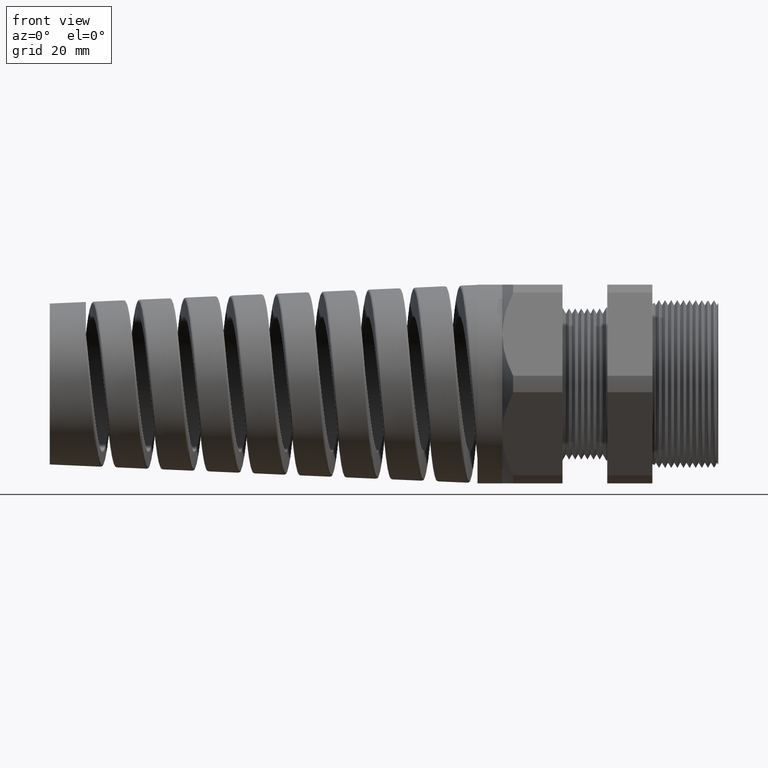
[diagram: clean part render]
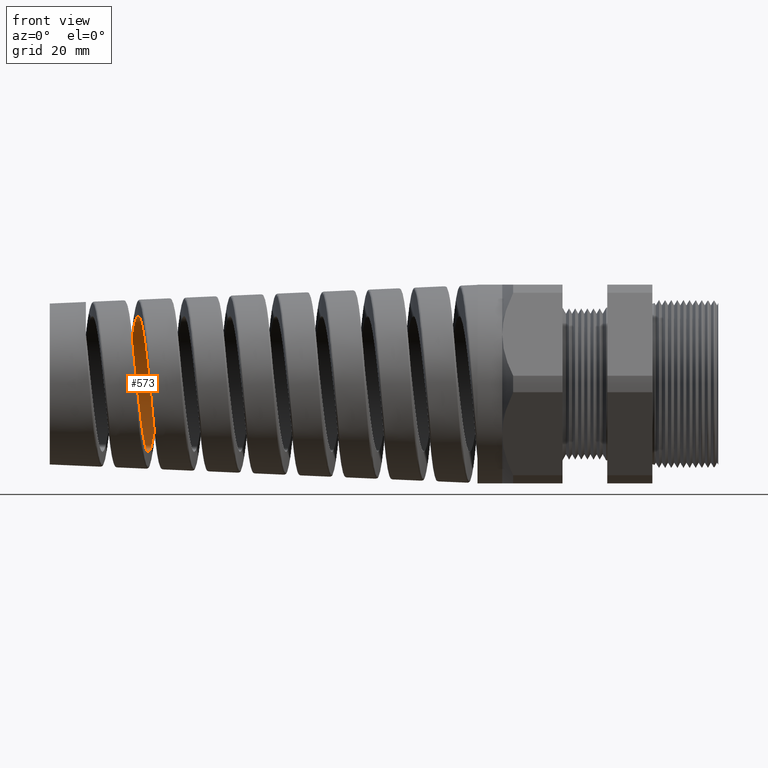
[diagram: same view with one face highlighted and labeled with its STEP entity id]
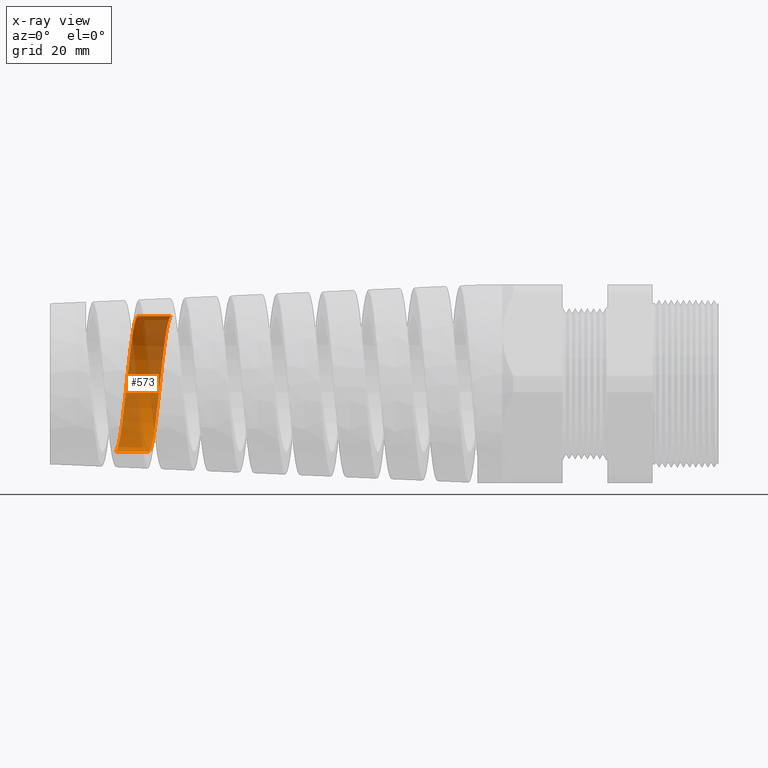
[diagram: x-ray of the same camera — body ghosted, the highlighted face saturated]
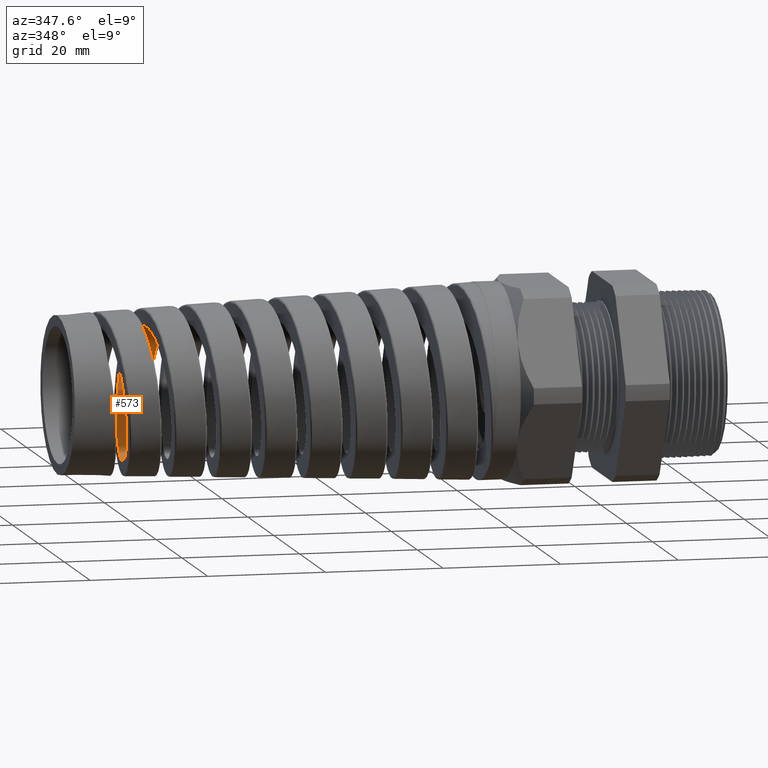
[diagram: same view with one face highlighted and labeled with its STEP entity id]
A machine part, front view. The second image highlights one B-rep face of the part: STEP entity #573.
The next image is the same camera in x-ray: the body ghosted, the highlighted face saturated — about 61% of this face is hidden behind the body in this view.
A second angle (auxiliary view) of the same face is appended — the face is thin or edge-on in the first view.
In plain terms, the highlighted cylindrical surface (partial cylindrical patch) has radius 11.2776 mm, axis along (1, 0, 0).
Its self-contained STEP definition (entity closure, byte-faithful):
#442 = VERTEX_POINT ( 'NONE', #2413 ) ;
#444 = EDGE_CURVE ( 'NONE', #442, #445, #2536, .T. ) ;
#445 = VERTEX_POINT ( 'NONE', #2532 ) ;
#459 = VERTEX_POINT ( 'NONE', #2703 ) ;
#466 = VERTEX_POINT ( 'NONE', #2696 ) ;
#468 = EDGE_CURVE ( 'NONE', #459, #466, #2718, .T. ) ;
#573 = ADVANCED_FACE ( 'NONE', ( #3527 ), #3555, .F. ) ;
#574 = EDGE_LOOP ( 'NONE', ( #575, #576, #578, #579 ) ) ;
#575 = ORIENTED_EDGE ( 'NONE', *, *, #444, .F. ) ;
#576 = ORIENTED_EDGE ( 'NONE', *, *, #577, .T. ) ;
#577 = EDGE_CURVE ( 'NONE', #442, #459, #3550, .T. ) ;
#578 = ORIENTED_EDGE ( 'NONE', *, *, #468, .T. ) ;
#579 = ORIENTED_EDGE ( 'NONE', *, *, #580, .T. ) ;
#580 = EDGE_CURVE ( 'NONE', #466, #445, #3675, .T. ) ;
#2413 = CARTESIAN_POINT ( 'NONE',  ( -3.672512712896237400, -4.752583149040248300E-013, 0.4439999999999999500 ) ) ;
#2532 = CARTESIAN_POINT ( 'NONE',  ( -3.454910713139912800, 4.588650926857941900E-016, 0.4439999999999999500 ) ) ;
#2533 = DIRECTION ( 'NONE',  ( 1.000000000000000000, 0.0000000000000000000, 0.0000000000000000000 ) ) ;
#2534 = VECTOR ( 'NONE', #2533, 39.37007874015748100 ) ;
#2535 = CARTESIAN_POINT ( 'NONE',  ( 0.09602717987635048200, 5.437431788214247900E-017, 0.4439999999999999500 ) ) ;
#2536 = LINE ( 'NONE', #2535, #2534 ) ;
#2696 = CARTESIAN_POINT ( 'NONE',  ( -3.604978604642645300, -4.670286228231112400E-013, -0.4439999999999999500 ) ) ;
#2703 = CARTESIAN_POINT ( 'NONE',  ( -3.822443610227072200, 1.969918514181339600E-015, -0.4439999999999999500 ) ) ;
#2715 = DIRECTION ( 'NONE',  ( 1.000000000000000000, 0.0000000000000000000, 0.0000000000000000000 ) ) ;
#2716 = VECTOR ( 'NONE', #2715, 39.37007874015748100 ) ;
#2717 = CARTESIAN_POINT ( 'NONE',  ( 0.09602717987635048200, 0.0000000000000000000, -0.4439999999999999500 ) ) ;
#2718 = LINE ( 'NONE', #2717, #2716 ) ;
#3527 = FACE_OUTER_BOUND ( 'NONE', #574, .T. ) ;
#3548 = CARTESIAN_POINT ( 'NONE',  ( -3.675638035217889200, 0.02907831844047455800, 0.4440000000000309300 ) ) ;
#3549 = CARTESIAN_POINT ( 'NONE',  ( -3.672512712896237400, -4.752583149040248300E-013, 0.4439999999999999500 ) ) ;
#3550 = B_SPLINE_CURVE_WITH_KNOTS ( 'NONE', 3,
 ( #3549, #3548, #3631, #3630, #3629, #3628, #3627, #3626, #3625, #3624, #3623, #3622, #3621, #3620, #3619, #3618, #3617, #3616, #3615, #3614, #3613, #3612, #3611, #3610, #3609, #3608, #3607, #3606, #3605, #3604, #3603, #3602, #3601, #3600, #3599, #3598, #3597, #3596, #3595, #3594, #3593, #3592, #3591, #3590, #3589, #3588, #3587, #3586 ),
 .UNSPECIFIED., .F., .F.,
 ( 4, 2, 2, 2, 2, 2, 2, 2, 2, 2, 2, 2, 2, 2, 2, 2, 2, 2, 2, 2, 2, 2, 2, 4 ),
 ( 0.5446853917177682000, 0.5469021130848819000, 0.5480104737684388100, 0.5491188344519957200, 0.5513355558191094200, 0.5524439165026662200, 0.5535522771862231300, 0.5546606378697800400, 0.5557689985533368300, 0.5579857199204506500, 0.5590940806040074500, 0.5602024412875643600, 0.5624191626546780600, 0.5635275233382349700, 0.5646358840217917700, 0.5668526053889055800, 0.5690693267560192900, 0.5701776874395760900, 0.5712860481231329900, 0.5735027694902467000, 0.5757194908573605200, 0.5779362122244742200, 0.5790445729080310200, 0.5801529335915879300 ),
 .UNSPECIFIED. ) ;
#3551 = DIRECTION ( 'NONE',  ( 0.0000000000000000000, 0.0000000000000000000, -1.000000000000000000 ) ) ;
#3552 = DIRECTION ( 'NONE',  ( 1.000000000000000000, 0.0000000000000000000, 0.0000000000000000000 ) ) ;
#3553 = CARTESIAN_POINT ( 'NONE',  ( 0.09602717987635048200, 0.0000000000000000000, 0.0000000000000000000 ) ) ;
#3554 = AXIS2_PLACEMENT_3D ( 'NONE', #3553, #3552, #3551 ) ;
#3555 = CYLINDRICAL_SURFACE ( 'NONE', #3554, 0.4439999999999999500 ) ;
#3586 = CARTESIAN_POINT ( 'NONE',  ( -3.822443610227072200, 1.969918514181339600E-015, -0.4439999999999999500 ) ) ;
#3587 = CARTESIAN_POINT ( 'NONE',  ( -3.820888889119868000, 0.01446393878662803300, -0.4439999999999998400 ) ) ;
#3588 = CARTESIAN_POINT ( 'NONE',  ( -3.819333151401077800, 0.02893897862240789700, -0.4432949273965424200 ) ) ;
#3589 = CARTESIAN_POINT ( 'NONE',  ( -3.816204422092647000, 0.05791004261739410300, -0.4404478222255908700 ) ) ;
#3590 = CARTESIAN_POINT ( 'NONE',  ( -3.814623408964656900, 0.07247862019980773300, -0.4382868450889252400 ) ) ;
#3591 = CARTESIAN_POINT ( 'NONE',  ( -3.809922828973564300, 0.1153683219686311900, -0.4297396725256221200 ) ) ;
#3592 = CARTESIAN_POINT ( 'NONE',  ( -3.806826953188867400, 0.1430541286033896700, -0.4213218363639396600 ) ) ;
#3593 = CARTESIAN_POINT ( 'NONE',  ( -3.800593771048761800, 0.1966293231186677900, -0.3991409309973761900 ) ) ;
#3594 = CARTESIAN_POINT ( 'NONE',  ( -3.797429861594527900, 0.2227145945499239800, -0.3851951235664180000 ) ) ;
#3595 = CARTESIAN_POINT ( 'NONE',  ( -3.791195756417219200, 0.2709289725304144200, -0.3529512228176849300 ) ) ;
#3596 = CARTESIAN_POINT ( 'NONE',  ( -3.788100503825459600, 0.2933016405478673400, -0.3346031872770070500 ) ) ;
#3597 = CARTESIAN_POINT ( 'NONE',  ( -3.783401617952992800, 0.3242138715039256100, -0.3036999371837876300 ) ) ;
#3598 = CARTESIAN_POINT ( 'NONE',  ( -3.781820095638146900, 0.3341043874777468400, -0.2927837440492249100 ) ) ;
#3599 = CARTESIAN_POINT ( 'NONE',  ( -3.778689660952627700, 0.3525712330092765100, -0.2702620731173369700 ) ) ;
#3600 = CARTESIAN_POINT ( 'NONE',  ( -3.777133548179794500, 0.3611988654616083400, -0.2586128705154687700 ) ) ;
#3601 = CARTESIAN_POINT ( 'NONE',  ( -3.772469551707655200, 0.3852991451738370700, -0.2225253189107356000 ) ) ;
#3602 = CARTESIAN_POINT ( 'NONE',  ( -3.769359930806240700, 0.3990302552496907700, -0.1969006133566777500 ) ) ;
#3603 = CARTESIAN_POINT ( 'NONE',  ( -3.763058420220919900, 0.4214501046917314400, -0.1427403425811982200 ) ) ;
#3604 = CARTESIAN_POINT ( 'NONE',  ( -3.759958006520835100, 0.4298257505554262100, -0.1149928021849837600 ) ) ;
#3605 = CARTESIAN_POINT ( 'NONE',  ( -3.755292427112976400, 0.4382934985464543900, -0.07241677451137953900 ) ) ;
#3606 = CARTESIAN_POINT ( 'NONE',  ( -3.753734798023343500, 0.4404285034215649800, -0.05806448178780131800 ) ) ;
#3607 = CARTESIAN_POINT ( 'NONE',  ( -3.750599303927516700, 0.4432897748186490100, -0.02903319156890713300 ) ) ;
#3608 = CARTESIAN_POINT ( 'NONE',  ( -3.749018747263103800, 0.4440071608698743500, -0.01432793028524344600 ) ) ;
#3609 = CARTESIAN_POINT ( 'NONE',  ( -3.744327054358403700, 0.4439855144317485000, 0.02931649594882569300 ) ) ;
#3610 = CARTESIAN_POINT ( 'NONE',  ( -3.741232205036390200, 0.4411380415607408800, 0.05810366632158917000 ) ) ;
#3611 = CARTESIAN_POINT ( 'NONE',  ( -3.736551822199566600, 0.4326466704918894800, 0.1008144853198011900 ) ) ;
#3612 = CARTESIAN_POINT ( 'NONE',  ( -3.734979015055124300, 0.4290904953493652800, 0.1150282878980222900 ) ) ;
#3613 = CARTESIAN_POINT ( 'NONE',  ( -3.731833254004541800, 0.4205847928339452300, 0.1430335354129979600 ) ) ;
#3614 = CARTESIAN_POINT ( 'NONE',  ( -3.730272177151865000, 0.4156736543291989500, 0.1567201912704632200 ) ) ;
#3615 = CARTESIAN_POINT ( 'NONE',  ( -3.725601392559798200, 0.3990261141837804200, 0.1968587849712509500 ) ) ;
#3616 = CARTESIAN_POINT ( 'NONE',  ( -3.722503870012772200, 0.3853934916988599500, 0.2223979497144986700 ) ) ;
#3617 = CARTESIAN_POINT ( 'NONE',  ( -3.717795096547723300, 0.3610536798147637700, 0.2588232759287329400 ) ) ;
#3618 = CARTESIAN_POINT ( 'NONE',  ( -3.716216581855919200, 0.3522878994771471200, 0.2706298294994236600 ) ) ;
#3619 = CARTESIAN_POINT ( 'NONE',  ( -3.713092194582171300, 0.3338335451199557200, 0.2930911682148582600 ) ) ;
#3620 = CARTESIAN_POINT ( 'NONE',  ( -3.711537591185771300, 0.3241013988478828000, 0.3038148093837464400 ) ) ;
#3621 = CARTESIAN_POINT ( 'NONE',  ( -3.708428608864963400, 0.3036433562263258200, 0.3242620350205203700 ) ) ;
#3622 = CARTESIAN_POINT ( 'NONE',  ( -3.706874288965475100, 0.2929174511900805000, 0.3339856197906754300 ) ) ;
#3623 = CARTESIAN_POINT ( 'NONE',  ( -3.703750956475797600, 0.2704597047287694600, 0.3524181827838647800 ) ) ;
#3624 = CARTESIAN_POINT ( 'NONE',  ( -3.702173989090225900, 0.2586639648238259800, 0.3611683238740895900 ) ) ;
#3625 = CARTESIAN_POINT ( 'NONE',  ( -3.697461012268538300, 0.2221967331781996600, 0.3855113892462050900 ) ) ;
#3626 = CARTESIAN_POINT ( 'NONE',  ( -3.694364053556744600, 0.1966427744412881100, 0.3991319651078166200 ) ) ;
#3627 = CARTESIAN_POINT ( 'NONE',  ( -3.689694923790786300, 0.1565078311499122100, 0.4157535031319029600 ) ) ;
#3628 = CARTESIAN_POINT ( 'NONE',  ( -3.688134801992536600, 0.1428266899124230600, 0.4206546270731497100 ) ) ;
#3629 = CARTESIAN_POINT ( 'NONE',  ( -3.684991323853882500, 0.1148424792132963600, 0.4291398182382215000 ) ) ;
#3630 = CARTESIAN_POINT ( 'NONE',  ( -3.683415355332933400, 0.1006030986950326700, 0.4326961244133870600 ) ) ;
#3631 = CARTESIAN_POINT ( 'NONE',  ( -3.678731820061940500, 0.05786594011338236400, 0.4411702745793567600 ) ) ;
#3632 = CARTESIAN_POINT ( 'NONE',  ( -3.462738520276302400, 0.07248378711504026300, 0.4382859277347296300 ) ) ;
#3633 = CARTESIAN_POINT ( 'NONE',  ( -3.467442969368619300, 0.1153678616970725800, 0.4297395395664330200 ) ) ;
#3634 = CARTESIAN_POINT ( 'NONE',  ( -3.470541947506351500, 0.1430529576543280700, 0.4213223714738729100 ) ) ;
#3635 = CARTESIAN_POINT ( 'NONE',  ( -3.476780682969529100, 0.1966318096971382000, 0.3991398511966043900 ) ) ;
#3636 = CARTESIAN_POINT ( 'NONE',  ( -3.479947388510651800, 0.2227170037664309400, 0.3851935672820368000 ) ) ;
#3637 = CARTESIAN_POINT ( 'NONE',  ( -3.486187006351554500, 0.2709277250608492200, 0.3529520021695730100 ) ) ;
#3638 = CARTESIAN_POINT ( 'NONE',  ( -3.489285658515818100, 0.2933011407008520600, 0.3346039365504899800 ) ) ;
#3639 = CARTESIAN_POINT ( 'NONE',  ( -3.493989055816144200, 0.3242169740230250200, 0.3036967107629408600 ) ) ;
#3640 = CARTESIAN_POINT ( 'NONE',  ( -3.495571805399695400, 0.3341070445934565800, 0.2927806259883395900 ) ) ;
#3641 = CARTESIAN_POINT ( 'NONE',  ( -3.498704537016371400, 0.3525715793114480000, 0.2702615282701726400 ) ) ;
#3642 = CARTESIAN_POINT ( 'NONE',  ( -3.500261948352888700, 0.3611986495762653500, 0.2586131547358577800 ) ) ;
#3643 = CARTESIAN_POINT ( 'NONE',  ( -3.504930249530350900, 0.3852984680077220500, 0.2225264109796937500 ) ) ;
#3644 = CARTESIAN_POINT ( 'NONE',  ( -3.508044462898948900, 0.3990342783328562600, 0.1968917397437767400 ) ) ;
#3645 = CARTESIAN_POINT ( 'NONE',  ( -3.514350494081019500, 0.4214498280882782400, 0.1427401655747785900 ) ) ;
#3646 = CARTESIAN_POINT ( 'NONE',  ( -3.517453069464230100, 0.4298253698455029600, 0.1149944533654231600 ) ) ;
#3647 = CARTESIAN_POINT ( 'NONE',  ( -3.522123069467879100, 0.4382934585797550500, 0.07241710697829104000 ) ) ;
#3648 = CARTESIAN_POINT ( 'NONE',  ( -3.523682333963853000, 0.4404286699913192400, 0.05806369117734844200 ) ) ;
#3649 = CARTESIAN_POINT ( 'NONE',  ( -3.526821224864909800, 0.4432901350110233200, 0.02902863733229239400 ) ) ;
#3650 = CARTESIAN_POINT ( 'NONE',  ( -3.528403332932181300, 0.4440072040189759200, 0.01432496528701136300 ) ) ;
#3651 = CARTESIAN_POINT ( 'NONE',  ( -3.533099034924825200, 0.4439854261007692400, -0.02931465188278933500 ) ) ;
#3652 = CARTESIAN_POINT ( 'NONE',  ( -3.536196080801813100, 0.4411384761804639200, -0.05810158777900756300 ) ) ;
#3653 = CARTESIAN_POINT ( 'NONE',  ( -3.540880987353439000, 0.4326463593715997900, -0.1008159964480663300 ) ) ;
#3654 = CARTESIAN_POINT ( 'NONE',  ( -3.542455760560100100, 0.4290888511084263700, -0.1150341315865527600 ) ) ;
#3655 = CARTESIAN_POINT ( 'NONE',  ( -3.545604047808188100, 0.4205842329015969100, -0.1430349489110846800 ) ) ;
#3656 = CARTESIAN_POINT ( 'NONE',  ( -3.547166421678605200, 0.4156736275283964800, -0.1567201850911760000 ) ) ;
#3657 = CARTESIAN_POINT ( 'NONE',  ( -3.551841861430682800, 0.3990271233748753900, -0.1968564933185759100 ) ) ;
#3658 = CARTESIAN_POINT ( 'NONE',  ( -3.554941804608218200, 0.3853943892889104500, -0.2223969235341757000 ) ) ;
#3659 = CARTESIAN_POINT ( 'NONE',  ( -3.559655233263645100, 0.3610509992099982800, -0.2588271289735127300 ) ) ;
#3660 = CARTESIAN_POINT ( 'NONE',  ( -3.561234876844483500, 0.3522866635545736600, -0.2706313599493106500 ) ) ;
#3661 = CARTESIAN_POINT ( 'NONE',  ( -3.564361897355110100, 0.3338341365947679600, -0.2930904221404248600 ) ) ;
#3662 = CARTESIAN_POINT ( 'NONE',  ( -3.567473842470768400, 0.3143709773207148900, -0.3145367189262147100 ) ) ;
#3663 = CARTESIAN_POINT ( 'NONE',  ( -3.570586016532626000, 0.2929184154723330500, -0.3339848321841742400 ) ) ;
#3664 = CARTESIAN_POINT ( 'NONE',  ( -3.573712406239482900, 0.2704586000633292800, -0.3524190856121407500 ) ) ;
#3665 = CARTESIAN_POINT ( 'NONE',  ( -3.575290991877011900, 0.2586600442678322300, -0.3611710465779789900 ) ) ;
#3666 = CARTESIAN_POINT ( 'NONE',  ( -3.580007193268790000, 0.2221979148430303100, -0.3855103892074605600 ) ) ;
#3667 = CARTESIAN_POINT ( 'NONE',  ( -3.583106916703049400, 0.1966453736930596200, -0.3991307833558191400 ) ) ;
#3668 = CARTESIAN_POINT ( 'NONE',  ( -3.587780725436073800, 0.1565085983112451700, -0.4157532380618667600 ) ) ;
#3669 = CARTESIAN_POINT ( 'NONE',  ( -3.589342682304945200, 0.1428262034241990500, -0.4206548655521577000 ) ) ;
#3670 = CARTESIAN_POINT ( 'NONE',  ( -3.592489669151459200, 0.1148379062428530900, -0.4291411138390637800 ) ) ;
#3671 = CARTESIAN_POINT ( 'NONE',  ( -3.594066517963636200, 0.1006022115198793000, -0.4326962869572024700 ) ) ;
#3672 = CARTESIAN_POINT ( 'NONE',  ( -3.598753483864552300, 0.05786889440714520400, -0.4411697155257328600 ) ) ;
#3673 = CARTESIAN_POINT ( 'NONE',  ( -3.601849978119442400, 0.02908119245964528600, -0.4440000000000302600 ) ) ;
#3674 = CARTESIAN_POINT ( 'NONE',  ( -3.604978604642645300, -4.670286228231112400E-013, -0.4439999999999999500 ) ) ;
#3675 = B_SPLINE_CURVE_WITH_KNOTS ( 'NONE', 3,
 ( #3674, #3673, #3672, #3671, #3670, #3669, #3668, #3667, #3666, #3665, #3664, #3663, #3662, #3661, #3660, #3659, #3658, #3657, #3656, #3655, #3654, #3653, #3652, #3651, #3650, #3649, #3648, #3647, #3646, #3645, #3644, #3643, #3642, #3641, #3640, #3639, #3638, #3637, #3636, #3635, #3634, #3633, #3632, #3713, #3712, #3711, #3710 ),
 .UNSPECIFIED., .F., .F.,
 ( 4, 2, 2, 2, 2, 2, 1, 2, 2, 2, 2, 2, 2, 2, 2, 2, 2, 2, 2, 2, 2, 2, 2, 4 ),
 ( 0.09652945024966799700, 0.09874435247230067800, 0.09985180358361701900, 0.1009592546949333500, 0.1031741569175660300, 0.1042816080288823700, 0.1053890591401987100, 0.1064965102515150500, 0.1076039613628313700, 0.1098188635854640500, 0.1109263146967804000, 0.1120337658080967400, 0.1142486680307294000, 0.1153561191420457400, 0.1164635702533620800, 0.1186784724759947600, 0.1208933746986274500, 0.1220008258099437900, 0.1231082769212601300, 0.1253231791438928200, 0.1275380813665255000, 0.1297529835891581800, 0.1308604347004745400, 0.1319678858117908600 ),
 .UNSPECIFIED. ) ;
#3710 = CARTESIAN_POINT ( 'NONE',  ( -3.454910713139912800, 4.588650926857941900E-016, 0.4439999999999999500 ) ) ;
#3711 = CARTESIAN_POINT ( 'NONE',  ( -3.456466748822509600, 0.01446416564551111100, 0.4439999999999998900 ) ) ;
#3712 = CARTESIAN_POINT ( 'NONE',  ( -3.458023927868449900, 0.02894013253046296600, 0.4432949064309496500 ) ) ;
#3713 = CARTESIAN_POINT ( 'NONE',  ( -3.461155884604454800, 0.05791447392288822500, 0.4404472942915421100 ) ) ;